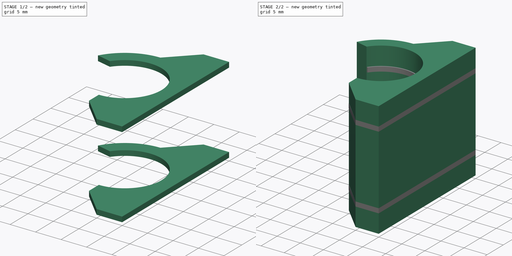
[diagram: build sequence overview — one tinted view per stage of 2, left to right]
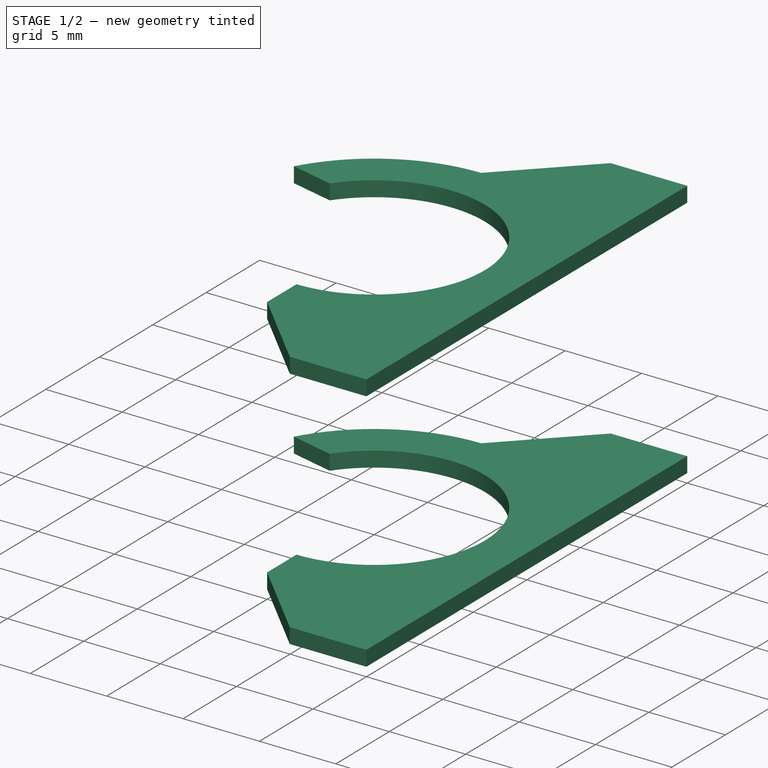
[diagram: stage 1 of 2 — iso view after this stage's code; geometry added in this stage tinted green]
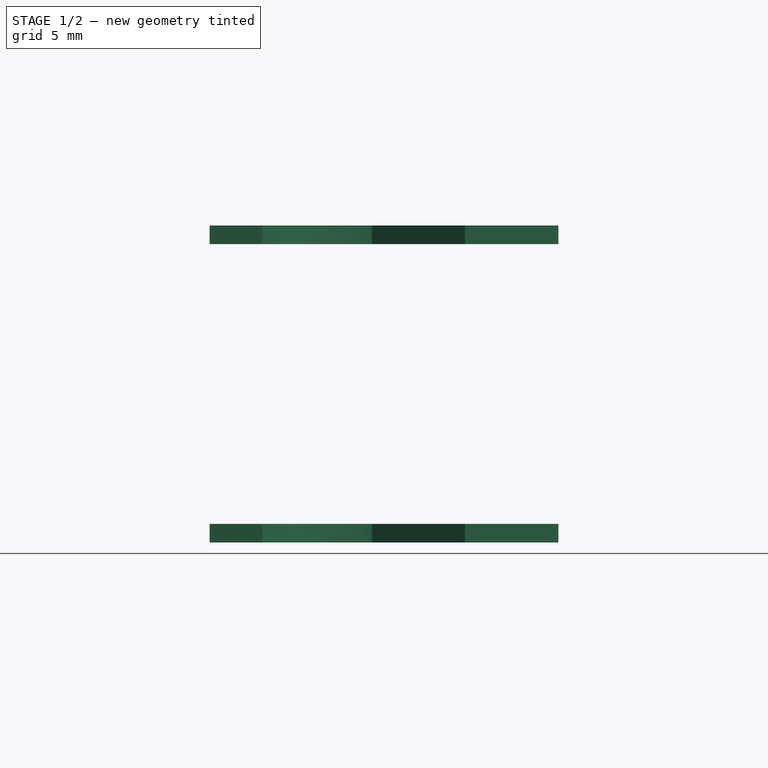
[diagram: stage 1 of 2 — front view after this stage's code; geometry added in this stage tinted green]
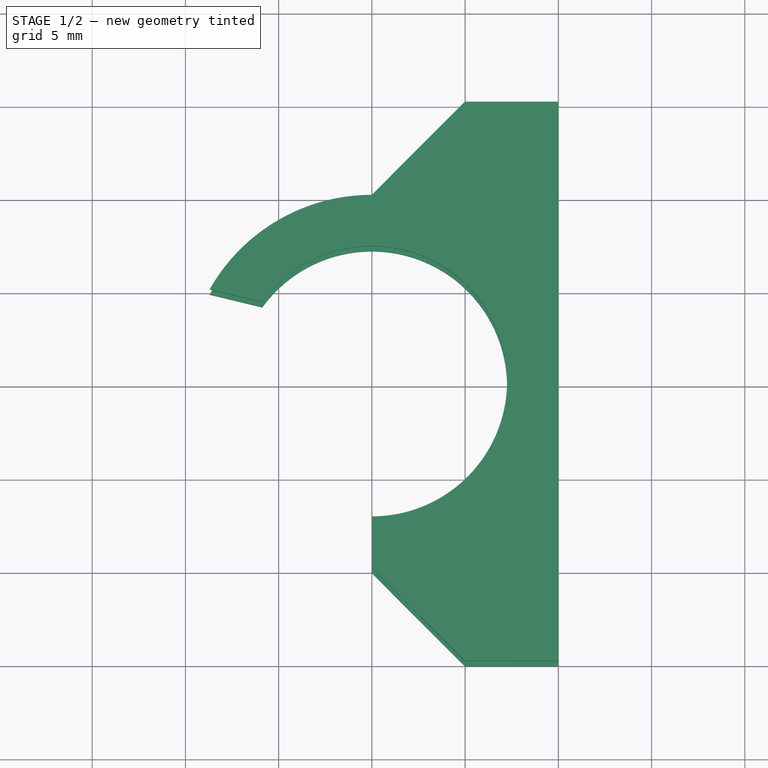
[diagram: stage 1 of 2 — top view after this stage's code; geometry added in this stage tinted green]
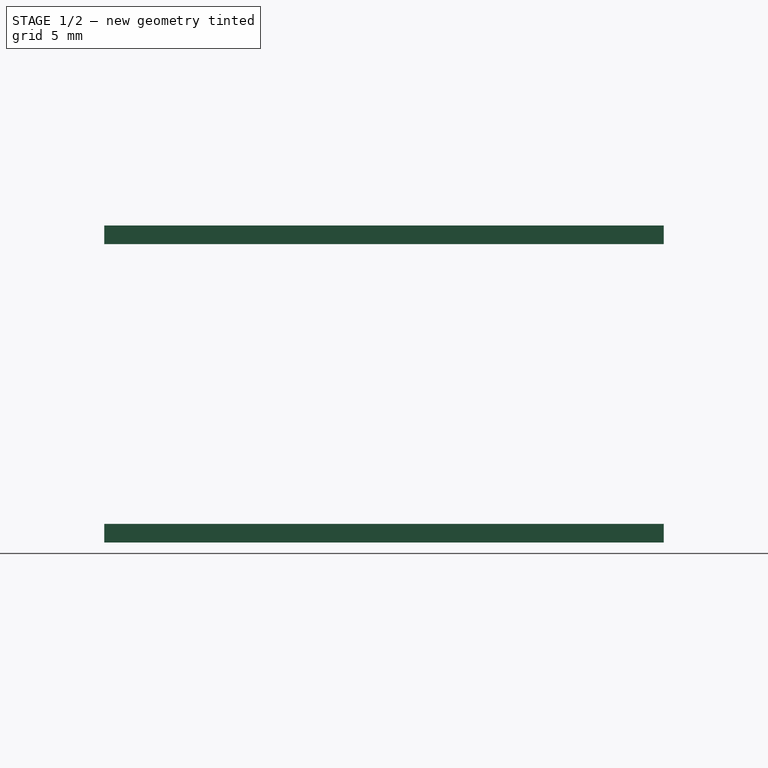
[diagram: stage 1 of 2 — right view after this stage's code; geometry added in this stage tinted green]
FCSTD DOCUMENT  (FreeCAD 0.15R4671 (Git))
Label: BearingLodge
License: All rights reserved
LicenseURL: http://en.wikipedia.org/wiki/All_rights_reserved
objects: Sketcher::SketchObject×3, PartDesign::Pad×3, Part::MultiFuse×1
note: 10 computed .brp shape members not serialized (recipe doc carries the construction recipe); baked Part::Feature solids carry a one-line shape summary decoded from their .brp

FEATURE [Sketcher::SketchObject] Sketch001  label="Base007"
  Placement = pos=(0,0,32) rot=(0,0,1;0rad)
  sketch-geometry (9):
    g0: LineSegment StartX=-5.8767 StartY=4.24581 StartZ=0 EndX=-8.70018 EndY=4.9302 EndZ=0
    g1: ArcOfCircle CenterX=0 CenterY=0 CenterZ=0 NormalX=0 NormalY=0 NormalZ=1 Radius=10 StartAngle=1.5708 EndAngle=2.62603
    g2: LineSegment StartX=4.98503 StartY=-15 StartZ=0 EndX=10 EndY=-15 EndZ=0
    g3: LineSegment StartX=10 StartY=-15 StartZ=0 EndX=10 EndY=15 EndZ=0
    g4: LineSegment StartX=10 StartY=15 StartZ=0 EndX=4.98503 EndY=15 EndZ=0
    g5: LineSegment StartX=-1e-12 StartY=10 StartZ=0 EndX=4.98503 EndY=15 EndZ=0
    g6: LineSegment StartX=0 StartY=-10 StartZ=0 EndX=4.98503 EndY=-15 EndZ=0
    g7: ArcOfCircle CenterX=0 CenterY=0 CenterZ=0 NormalX=0 NormalY=0 NormalZ=1 Radius=7.25 StartAngle=4.71239 EndAngle=8.79912
    g8: LineSegment StartX=0 StartY=-7.25 StartZ=0 EndX=0 EndY=-10 EndZ=0
  constraints (21):
    c: PointOnObject(g1,g-2)
    c: PointOnObject(g6,g-2)
    c: Coincident(g1,g-1)
    c: Coincident(g1,g0)
    c: Horizontal(g2)
    c: Coincident(g3,g2)
    c: Vertical(g3)
    c: Coincident(g4,g3)
    c: Horizontal(g4)
    c: DistanceY(g3,g2) = -30
    c: DistanceY(g-1,g3) = 15
    c: Coincident(g5,g1)
    c: Coincident(g5,g4)
    c: Coincident(g6,g2)
    c: DistanceX(g-1,g2) = 4.98503
    c: DistanceX(g2,g4) = 0
    c: Coincident(g7,g-1)
    c: Coincident(g7,g0)
    c: Coincident(g8,g7)
    c: Coincident(g8,g6)
    c: Vertical(g8)
FEATURE [Sketcher::SketchObject] Sketch002  label="Base008"
  Placement = pos=(0,0,48) rot=(0,0,1;0rad)
  sketch-geometry (9):
    g0: LineSegment StartX=-5.8767 StartY=4.24581 StartZ=0 EndX=-8.70018 EndY=4.9302 EndZ=0
    g1: ArcOfCircle CenterX=0 CenterY=0 CenterZ=0 NormalX=0 NormalY=0 NormalZ=1 Radius=10 StartAngle=1.5708 EndAngle=2.62603
    g2: LineSegment StartX=4.98503 StartY=-15 StartZ=0 EndX=10 EndY=-15 EndZ=0
    g3: LineSegment StartX=10 StartY=-15 StartZ=0 EndX=10 EndY=15 EndZ=0
    g4: LineSegment StartX=10 StartY=15 StartZ=0 EndX=4.98503 EndY=15 EndZ=0
    g5: LineSegment StartX=-1e-12 StartY=10 StartZ=0 EndX=4.98503 EndY=15 EndZ=0
    g6: LineSegment StartX=0 StartY=-10 StartZ=0 EndX=4.98503 EndY=-15 EndZ=0
    g7: ArcOfCircle CenterX=0 CenterY=0 CenterZ=0 NormalX=0 NormalY=0 NormalZ=1 Radius=7.25 StartAngle=4.71239 EndAngle=8.79912
    g8: LineSegment StartX=0 StartY=-7.25 StartZ=0 EndX=0 EndY=-10 EndZ=0
  constraints (21):
    c: PointOnObject(g1,g-2)
    c: PointOnObject(g6,g-2)
    c: Coincident(g1,g-1)
    c: Coincident(g1,g0)
    c: Horizontal(g2)
    c: Coincident(g3,g2)
    c: Vertical(g3)
    c: Coincident(g4,g3)
    c: Horizontal(g4)
    c: DistanceY(g3,g2) = -30
    c: DistanceY(g-1,g3) = 15
    c: Coincident(g5,g1)
    c: Coincident(g5,g4)
    c: Coincident(g6,g2)
    c: DistanceX(g-1,g2) = 4.98503
    c: DistanceX(g2,g4) = 0
    c: Coincident(g7,g-1)
    c: Coincident(g7,g0)
    c: Coincident(g8,g7)
    c: Coincident(g8,g6)
    c: Vertical(g8)
FEATURE [PartDesign::Pad] Pad003
  Length = 1
  Length2 = 100
  Placement = pos=(0,0,32) rot=(0,0,1;0rad)
  Sketch = -> Sketch001
  Type = 0
FEATURE [PartDesign::Pad] Pad004
  Length = 1
  Length2 = 100
  Placement = pos=(0,0,48) rot=(0,0,1;0rad)
  Sketch = -> Sketch002
  Type = 0
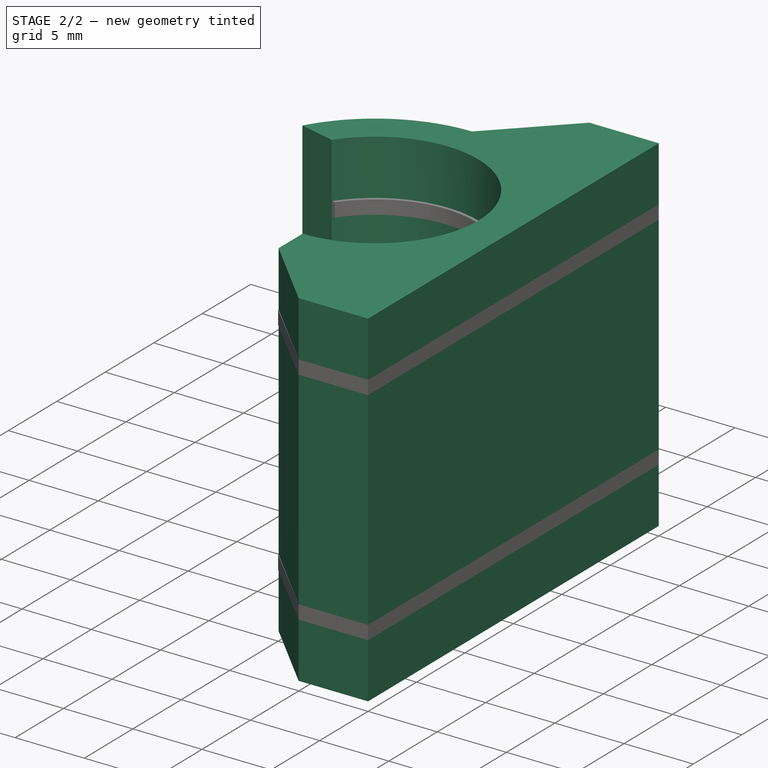
[diagram: stage 2 of 2 — iso view after this stage's code; geometry added in this stage tinted green]
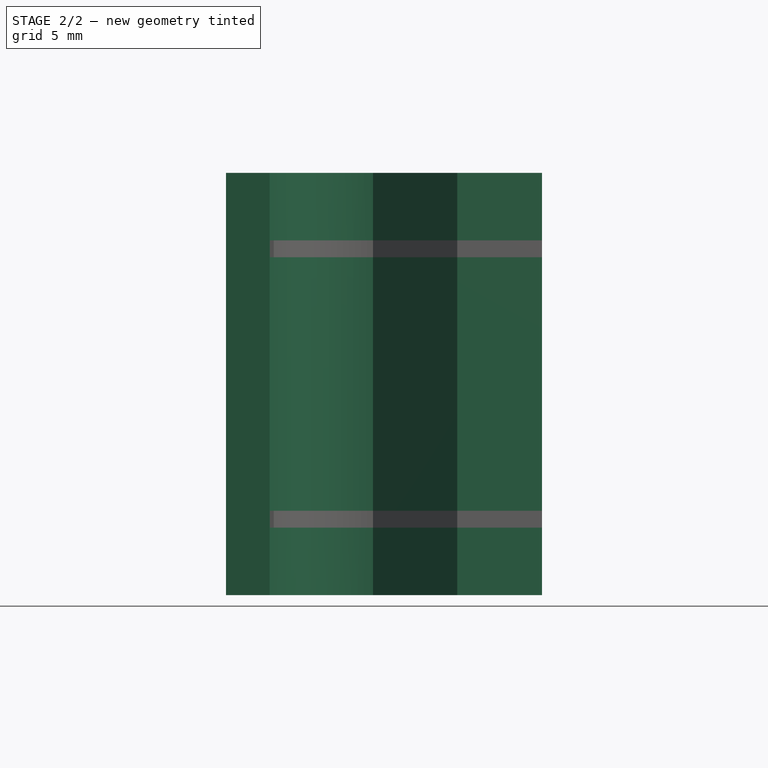
[diagram: stage 2 of 2 — front view after this stage's code; geometry added in this stage tinted green]
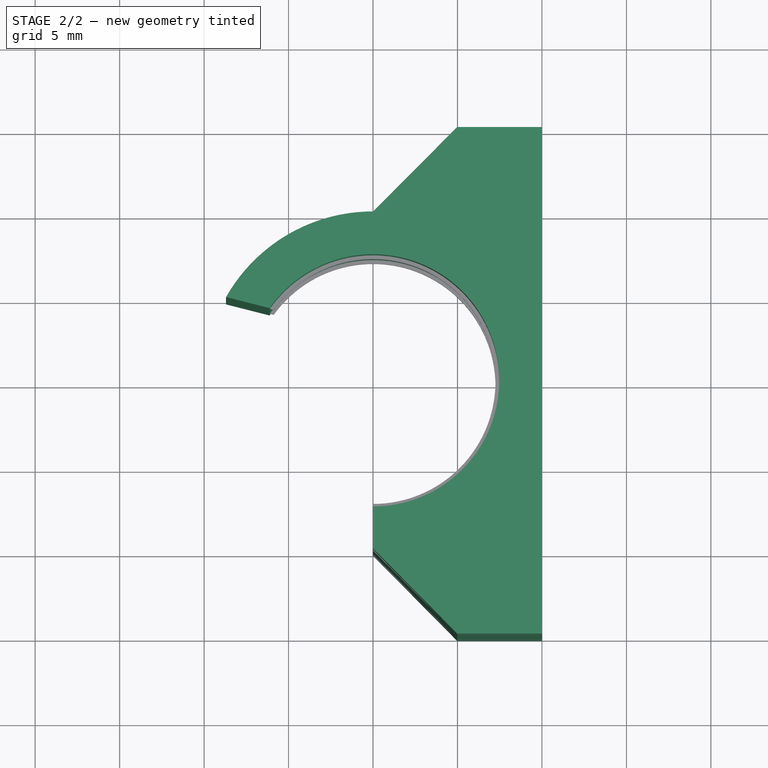
[diagram: stage 2 of 2 — top view after this stage's code; geometry added in this stage tinted green]
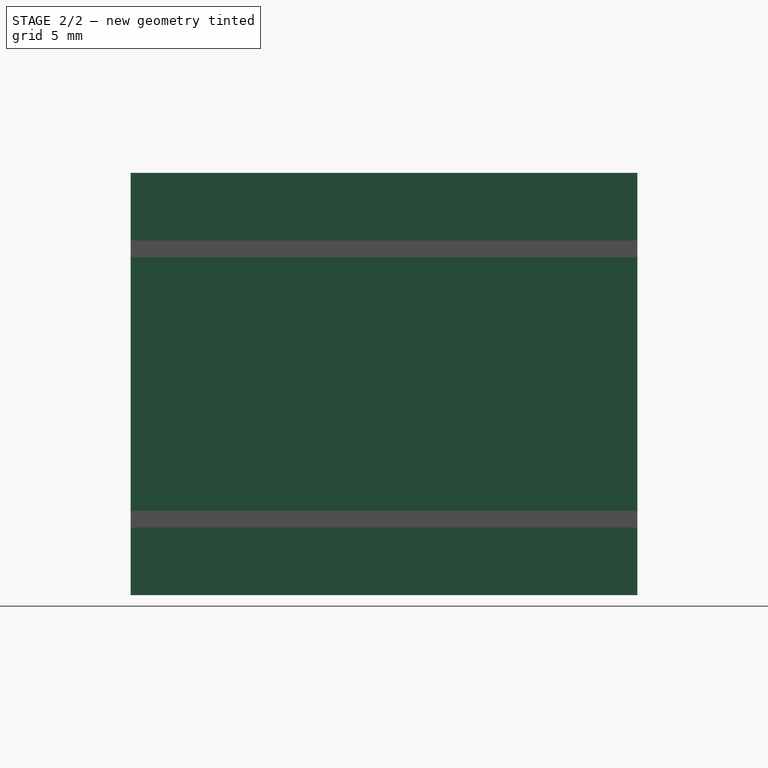
[diagram: stage 2 of 2 — right view after this stage's code; geometry added in this stage tinted green]
FEATURE [Sketcher::SketchObject] Sketch  label="Base004"
  Placement = pos=(0,0,28) rot=(0,0,1;0rad)
  sketch-geometry (9):
    g0: LineSegment StartX=-6.12405 StartY=4.27437 StartZ=0 EndX=-8.70018 EndY=4.9302 EndZ=0
    g1: ArcOfCircle CenterX=0 CenterY=0 CenterZ=0 NormalX=0 NormalY=0 NormalZ=1 Radius=10 StartAngle=1.5708 EndAngle=2.62603
    g2: LineSegment StartX=4.98503 StartY=-15 StartZ=0 EndX=10 EndY=-15 EndZ=0
    g3: LineSegment StartX=10 StartY=-15 StartZ=0 EndX=10 EndY=15 EndZ=0
    g4: LineSegment StartX=10 StartY=15 StartZ=0 EndX=4.98503 EndY=15 EndZ=0
    g5: LineSegment StartX=-1e-12 StartY=10 StartZ=0 EndX=4.98503 EndY=15 EndZ=0
    g6: LineSegment StartX=0 StartY=-9.95278 StartZ=0 EndX=4.98503 EndY=-15 EndZ=0
    g7: ArcOfCircle CenterX=0 CenterY=0 CenterZ=0 NormalX=0 NormalY=0 NormalZ=1 Radius=7.46821 StartAngle=4.71239 EndAngle=8.81542
    g8: LineSegment StartX=0 StartY=-7.46821 StartZ=0 EndX=0 EndY=-9.95278 EndZ=0
  constraints (21):
    c: PointOnObject(g1,g-2)
    c: PointOnObject(g6,g-2)
    c: Coincident(g1,g-1)
    c: Coincident(g1,g0)
    c: Horizontal(g2)
    c: Coincident(g3,g2)
    c: Vertical(g3)
    c: Coincident(g4,g3)
    c: Horizontal(g4)
    c: DistanceY(g3,g2) = -30
    c: DistanceY(g-1,g3) = 15
    c: Coincident(g5,g1)
    c: Coincident(g5,g4)
    c: Coincident(g6,g2)
    c: DistanceX(g-1,g2) = 4.98503
    c: DistanceX(g4,g2) = 0
    c: Coincident(g7,g-1)
    c: Coincident(g7,g0)
    c: Coincident(g8,g7)
    c: Coincident(g8,g6)
    c: Vertical(g8)
FEATURE [PartDesign::Pad] Pad
  Length = 25
  Length2 = 100
  Placement = pos=(0,0,28) rot=(0,0,1;0rad)
  Sketch = -> Sketch
  Type = 0
FEATURE [Part::MultiFuse] Fusion  label="BearingLodge"
  Shapes = -> [Pad,Pad003,Pad004]
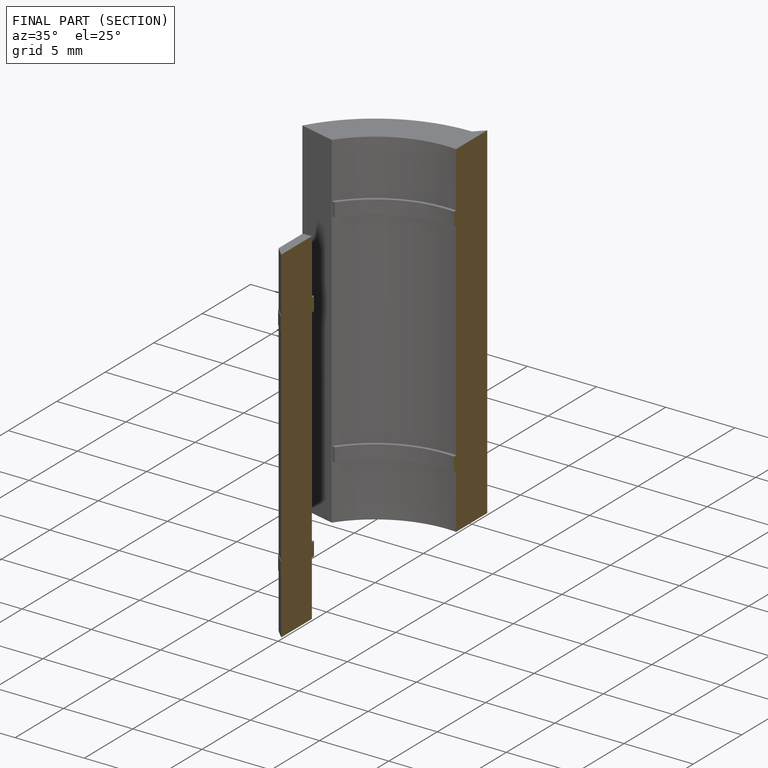
[diagram: finished part — half-section view (interior)]
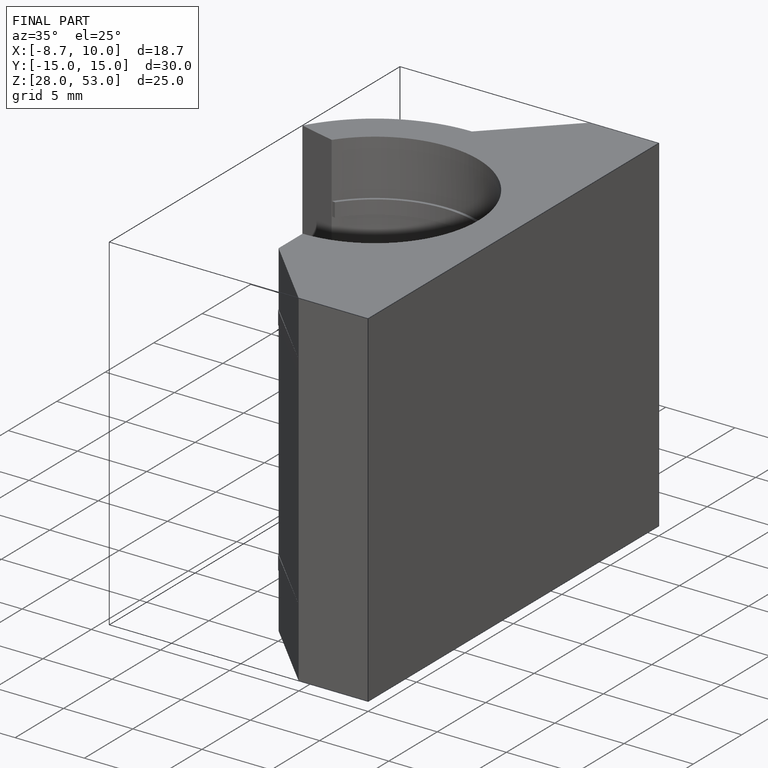
[diagram: finished part — iso view with bounding-box wireframe]
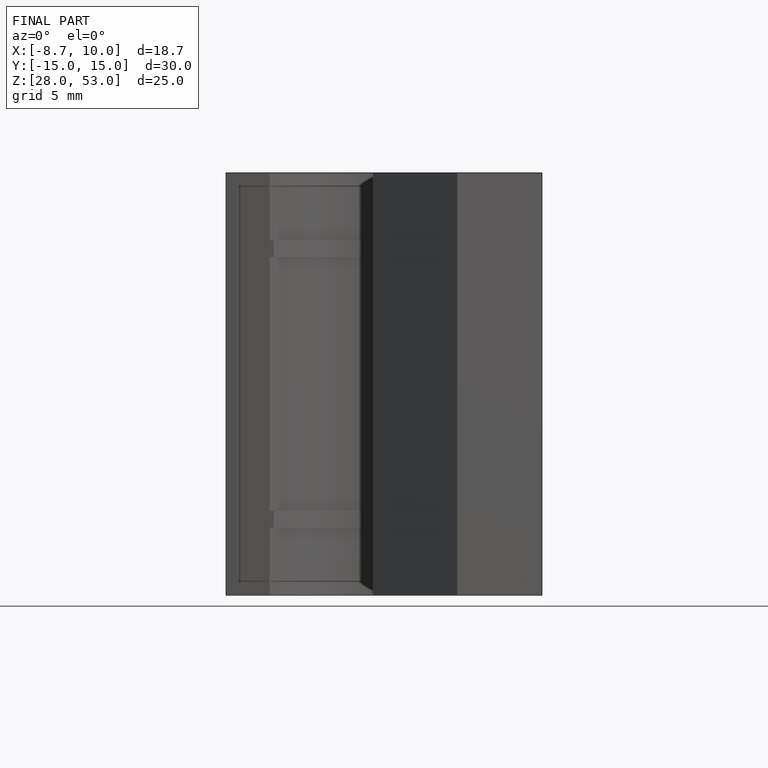
[diagram: finished part — front view with bounding-box wireframe]
